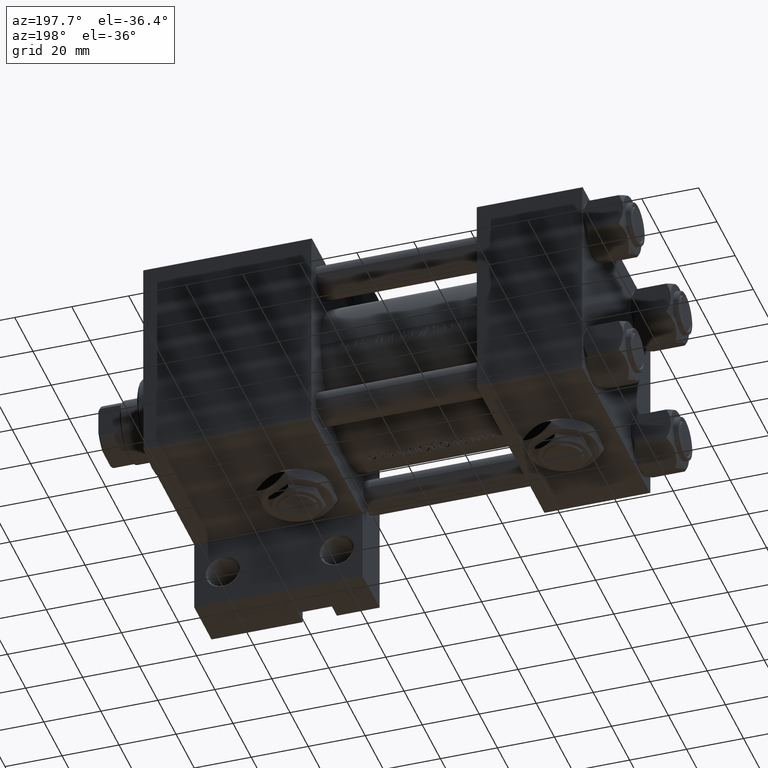
[diagram: clean part render]
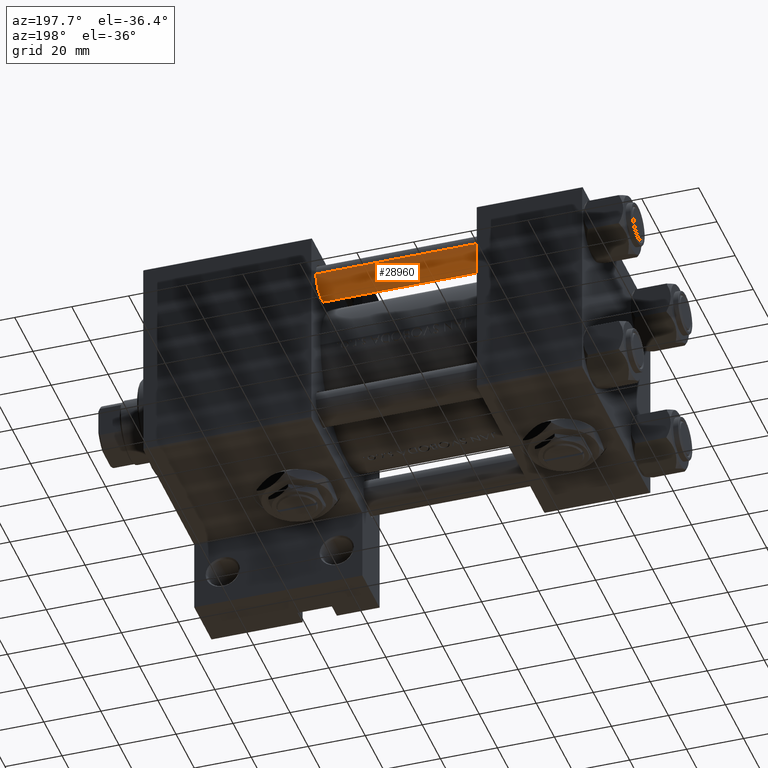
[diagram: same view with one face highlighted and labeled with its STEP entity id]
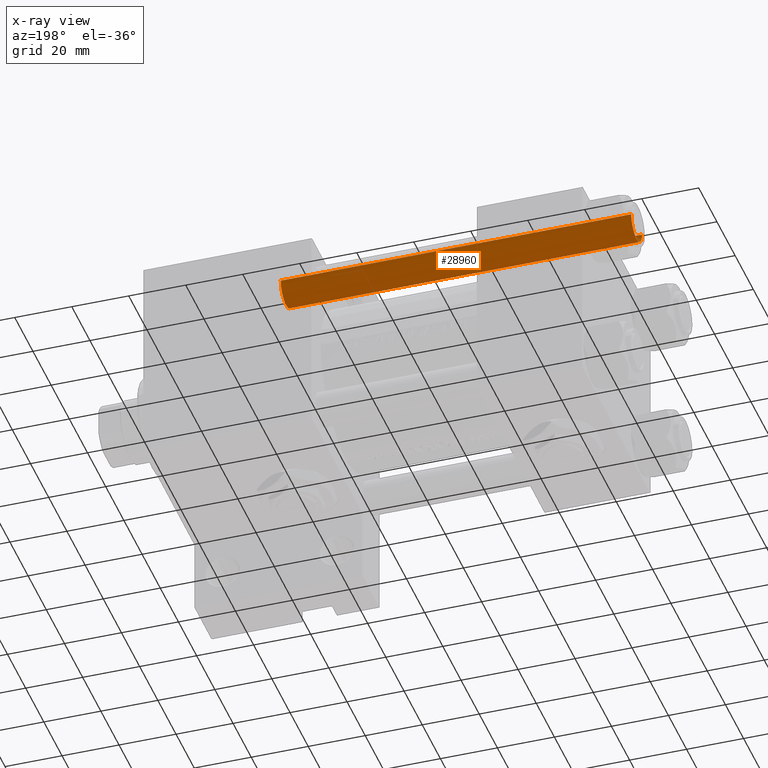
[diagram: x-ray of the same camera — body ghosted, the highlighted face saturated]
A machine part, auxiliary view. The second image highlights one B-rep face of the part: STEP entity #28960.
The next image is the same camera in x-ray: the body ghosted, the highlighted face saturated — about 0% of this face is hidden behind the body in this view.
In plain terms, the highlighted cylindrical surface (edge-blend (fillet) strip) has radius 6 mm, axis along (1, -0, 0).
Its self-contained STEP definition (entity closure, byte-faithful):
#442 = DIRECTION ( 'NONE',  ( -0.000000000000000000, -0.000000000000000000, 1.000000000000000000 ) ) ;
#2095 = VERTEX_POINT ( 'NONE', #2783 ) ;
#2783 = CARTESIAN_POINT ( 'NONE',  ( -6.000000000000000888, 0.000000000000000000, 123.5000000000000426 ) ) ;
#4448 = DIRECTION ( 'NONE',  ( 1.000000000000000000, 0.000000000000000000, 0.000000000000000000 ) ) ;
#5101 = DIRECTION ( 'NONE',  ( -0.000000000000000000, -0.000000000000000000, -1.000000000000000000 ) ) ;
#6979 = CARTESIAN_POINT ( 'NONE',  ( -6.000000000000000888, 0.000000000000000000, 0.4999999999999865663 ) ) ;
#8158 = FACE_OUTER_BOUND ( 'NONE', #49459, .T. ) ;
#10205 = EDGE_CURVE ( 'NONE', #24654, #16544, #29777, .T. ) ;
#10890 = EDGE_CURVE ( 'NONE', #2095, #16544, #39500, .T. ) ;
#11219 = VERTEX_POINT ( 'NONE', #25560 ) ;
#12000 = DIRECTION ( 'NONE',  ( -0.000000000000000000, -0.000000000000000000, -1.000000000000000000 ) ) ;
#12741 = LINE ( 'NONE', #35339, #41985 ) ;
#12849 = EDGE_CURVE ( 'NONE', #2095, #11219, #47916, .T. ) ;
#15961 = EDGE_CURVE ( 'NONE', #11219, #24654, #12741, .T. ) ;
#16418 = CARTESIAN_POINT ( 'NONE',  ( 0.000000000000000000, 0.000000000000000000, 124.0000000000000000 ) ) ;
#16544 = VERTEX_POINT ( 'NONE', #6979 ) ;
#19080 = CARTESIAN_POINT ( 'NONE',  ( 0.000000000000000000, 0.000000000000000000, 123.5000000000000426 ) ) ;
#22097 = ORIENTED_EDGE ( 'NONE', *, *, #10205, .T. ) ;
#23068 = ORIENTED_EDGE ( 'NONE', *, *, #15961, .T. ) ;
#23458 = DIRECTION ( 'NONE',  ( -0.000000000000000000, -0.000000000000000000, -1.000000000000000000 ) ) ;
#24138 = AXIS2_PLACEMENT_3D ( 'NONE', #42143, #442, #4448 ) ;
#24654 = VERTEX_POINT ( 'NONE', #41348 ) ;
#25560 = CARTESIAN_POINT ( 'NONE',  ( 6.000000000000000888, 7.347880794884120722E-16, 123.5000000000000426 ) ) ;
#28960 = ADVANCED_FACE ( 'NONE', ( #8158 ), #39037, .T. ) ;
#29765 = AXIS2_PLACEMENT_3D ( 'NONE', #16418, #23458, #31252 ) ;
#29777 = CIRCLE ( 'NONE', #24138, 6.000000000000000888 ) ;
#30775 = ORIENTED_EDGE ( 'NONE', *, *, #12849, .T. ) ;
#31252 = DIRECTION ( 'NONE',  ( -1.000000000000000000, 0.000000000000000000, 0.000000000000000000 ) ) ;
#34382 = VECTOR ( 'NONE', #5101, 1000.000000000000000 ) ;
#34408 = DIRECTION ( 'NONE',  ( 0.000000000000000000, 0.000000000000000000, -1.000000000000000000 ) ) ;
#35339 = CARTESIAN_POINT ( 'NONE',  ( 6.000000000000000888, 7.347880794884120722E-16, 124.0000000000000000 ) ) ;
#39037 = CYLINDRICAL_SURFACE ( 'NONE', #29765, 6.000000000000000888 ) ;
#39500 = LINE ( 'NONE', #42811, #34382 ) ;
#41348 = CARTESIAN_POINT ( 'NONE',  ( 6.000000000000000888, 7.347880794884120722E-16, 0.4999999999999865663 ) ) ;
#41985 = VECTOR ( 'NONE', #12000, 1000.000000000000000 ) ;
#42143 = CARTESIAN_POINT ( 'NONE',  ( 0.000000000000000000, 0.000000000000000000, 0.4999999999999865663 ) ) ;
#42291 = AXIS2_PLACEMENT_3D ( 'NONE', #19080, #34408, #42702 ) ;
#42702 = DIRECTION ( 'NONE',  ( 1.000000000000000000, 0.000000000000000000, 0.000000000000000000 ) ) ;
#42811 = CARTESIAN_POINT ( 'NONE',  ( -6.000000000000000888, 0.000000000000000000, 124.0000000000000000 ) ) ;
#47916 = CIRCLE ( 'NONE', #42291, 6.000000000000000888 ) ;
#48686 = ORIENTED_EDGE ( 'NONE', *, *, #10890, .F. ) ;
#49459 = EDGE_LOOP ( 'NONE', ( #30775, #23068, #22097, #48686 ) ) ;